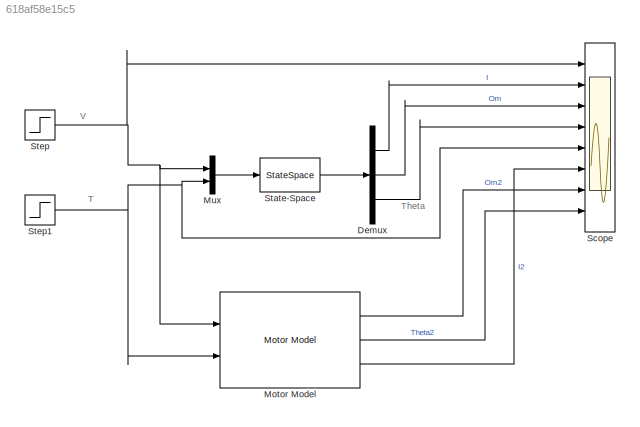
MODEL slx_618af58e15c5
KIND model
CONFIG AbsTol = auto
CONFIG FixedStep = auto
CONFIG MaxStep = auto
CONFIG MinStep = auto
CONFIG RelTol = 1e-3
CONFIG SampleTimeConstraint = Unconstrained
CONFIG Solver = VariableStepAuto
CONFIG SolverMode = Auto
CONFIG SolverName = VariableStepAuto
CONFIG StartTime = 0.0
CONFIG StopTime = 1
BLOCK [Demux] Demux
  DisplayOption = bar
  Outputs = 3
  Ports = [1, 3]
BLOCK [Reference] Motor Model  REF=LocalLib/Motor Model
  Ports = [2, 3]
  SourceBlock = LocalLib/Motor Model
  SourceType = SubSystem
BLOCK [Mux] Mux
  DisplayOption = bar
  Inputs = 2
  Ports = [2, 1]
BLOCK [Scope] Scope
  NumInputPorts = 8
  Ports = [8]
  ScopeSpecificationString = Simulink.scopes.TimeScopeBlockCfg('CurrentConfiguration', extmgr.ConfigurationSet(extmgr.Configuration('Core','General UI',true),extmgr.Configuration('Core','Source UI',true),extmgr.Configuration('Sources','WiredSimulink',true),extmgr.Configuration('Visuals','Time Domain',true,'SerializedDisplays',{struct('MinYLimReal','-1.2','MaxYLimReal','10.8','YLabelReal','','MinYLimMag','0.00000','MaxYLimMag'...<+6122ch>
BLOCK [StateSpace] State-Space
  A = A_mtr
  B = B_mtr
  C = C_mtr
  D = D_mtr
  Ports = [1, 1]
  X0 = 0
BLOCK [Step] Step
  After = Vdc
  SampleTime = 0
  Time = 0.1
BLOCK [Step] Step1
  After = -0.1
  SampleTime = 0
  Time = 0.5
ANNOTATION (root): T
ANNOTATION (root): Theta
ANNOTATION (root): V
LINE Demux:1 -> Scope:2
LINE Demux:2 -> Scope:3
LINE Demux:3 -> Scope:4
LINE Motor Model:1 -> Scope:7
LINE Motor Model:2 -> Scope:8
LINE Motor Model:3 -> Scope:6
LINE Mux:1 -> State-Space:1
LINE State-Space:1 -> Demux:1
NET Step1:1 -> Motor Model:2, Mux:2, Scope:5
NET Step:1 -> Motor Model:1, Mux:1, Scope:1
note: NET lines group one-source signal fan-out (src -> all destinations, sorted); 1:1 wires keep LINE
